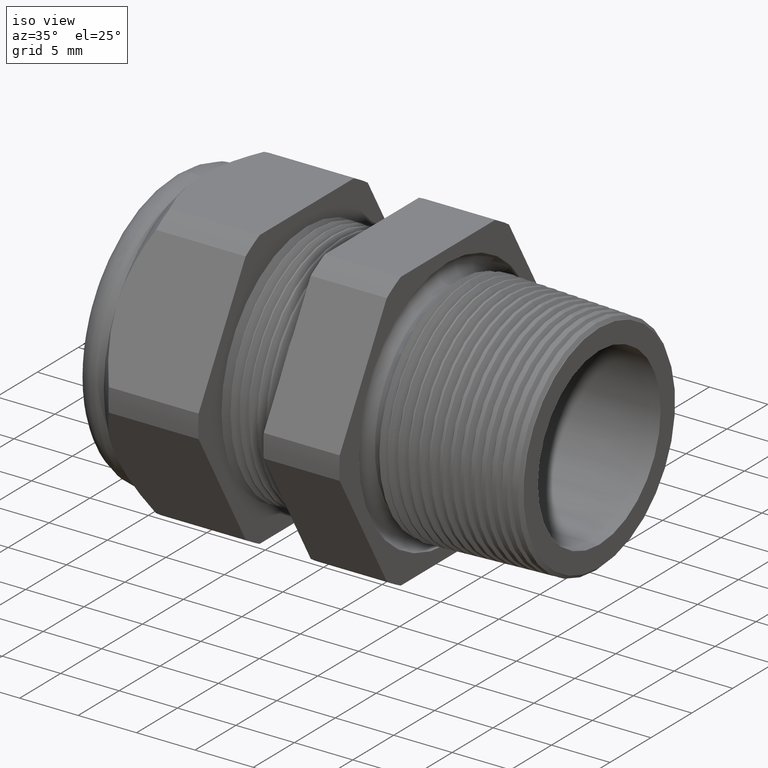
[diagram: clean part render]
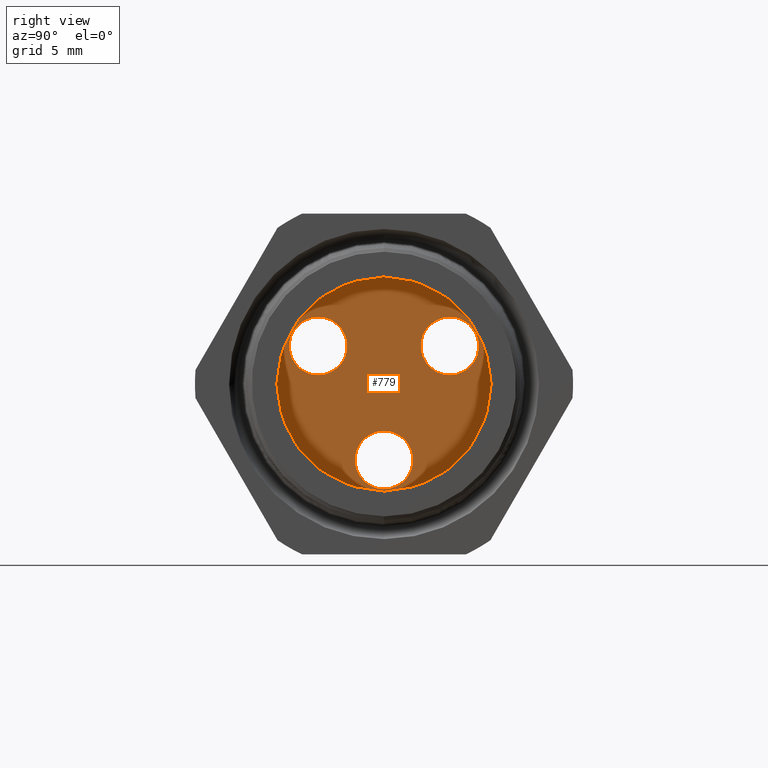
[diagram: tour spotlight — one face highlighted and labeled with its STEP entity id]
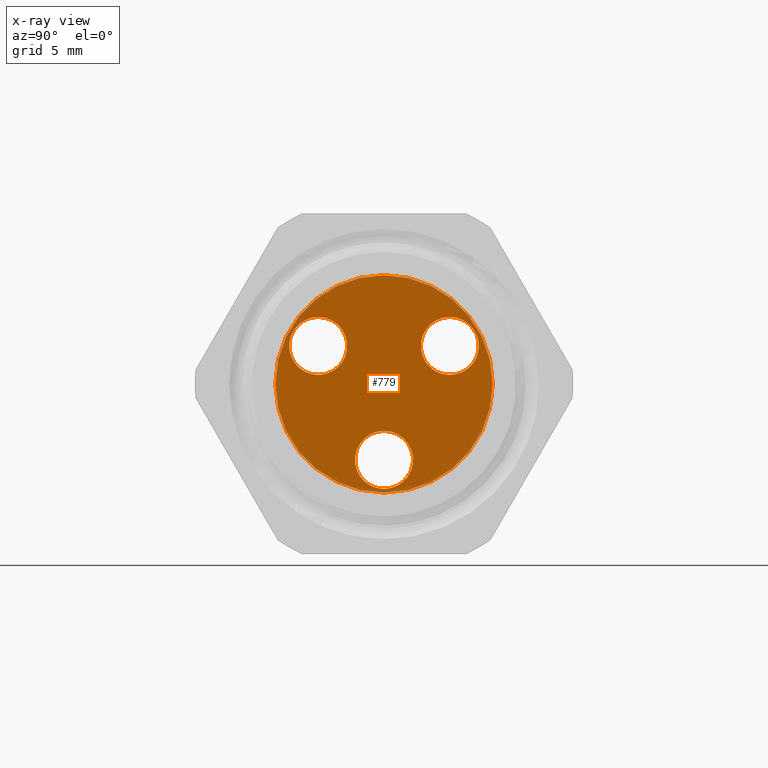
[diagram: x-ray of the same camera — body ghosted, this tour face saturated]
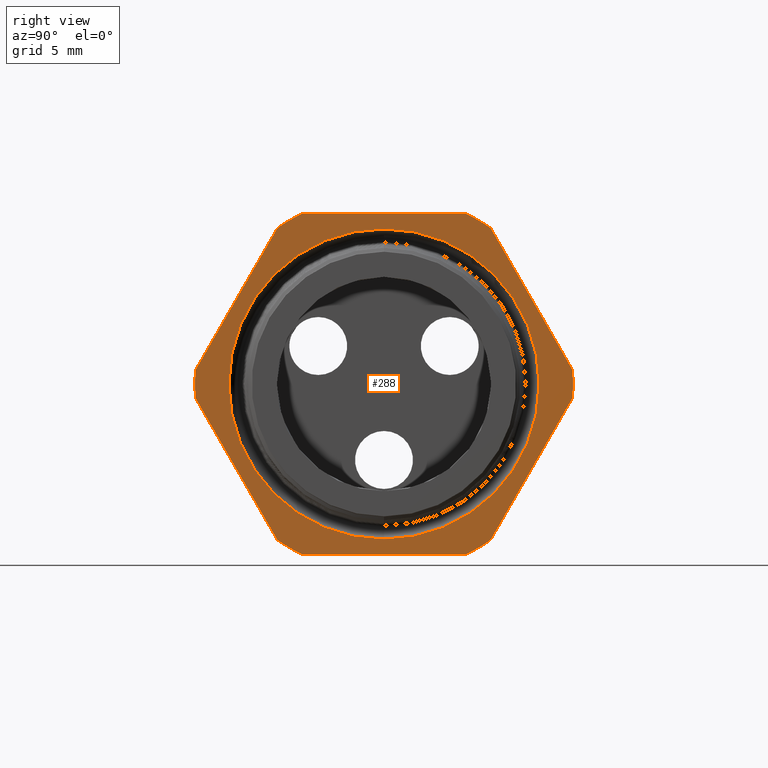
[diagram: tour spotlight — one face highlighted and labeled with its STEP entity id]
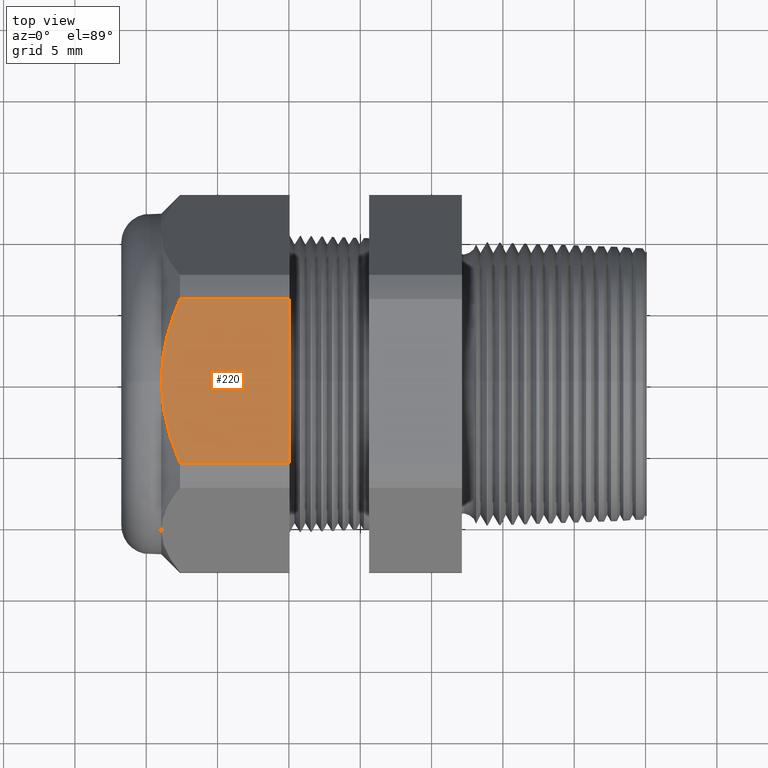
[diagram: tour spotlight — one face highlighted and labeled with its STEP entity id]
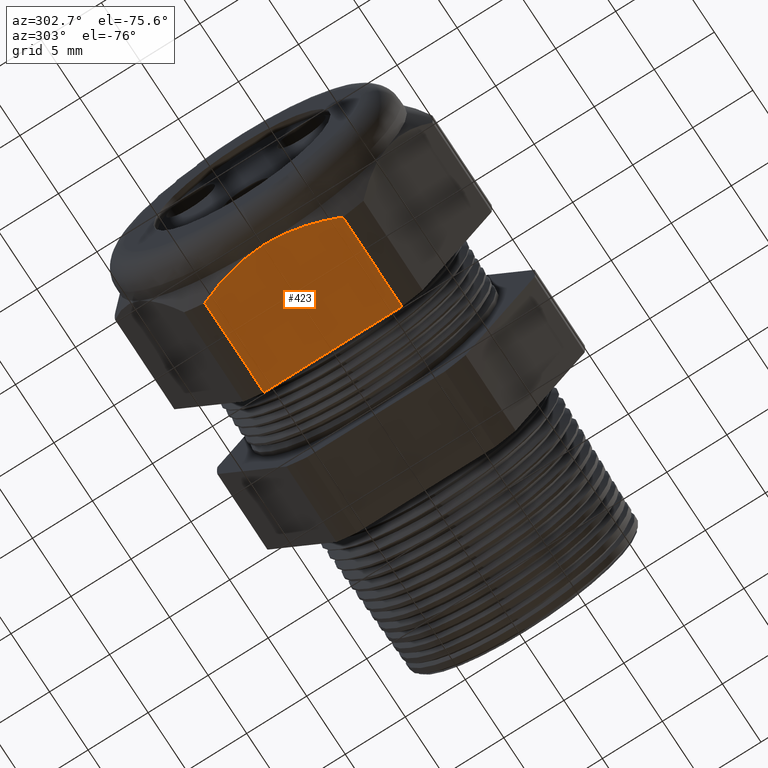
[diagram: tour spotlight — one face highlighted and labeled with its STEP entity id]
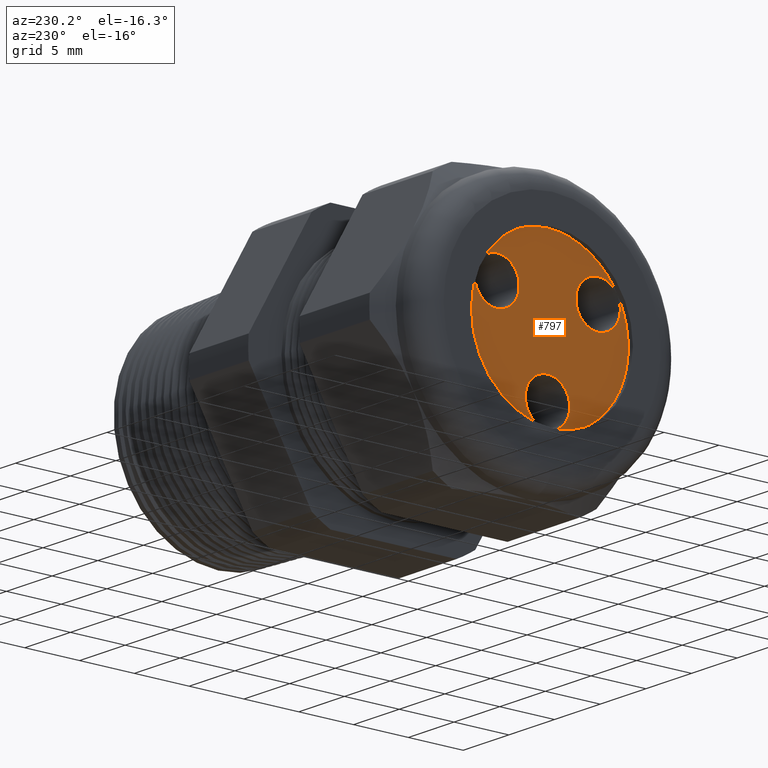
[diagram: tour spotlight — one face highlighted and labeled with its STEP entity id]
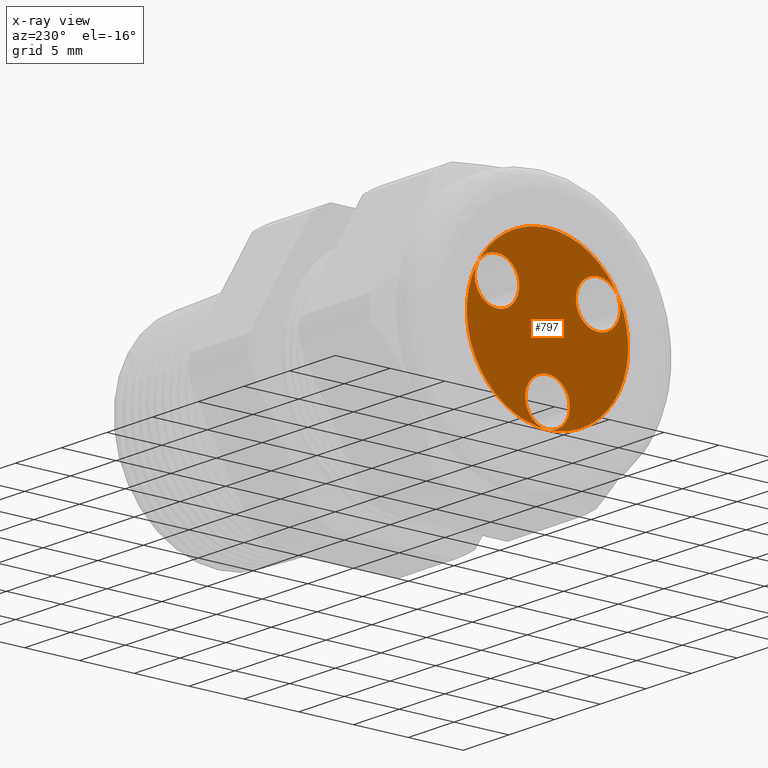
[diagram: x-ray of the same camera — body ghosted, this tour face saturated]
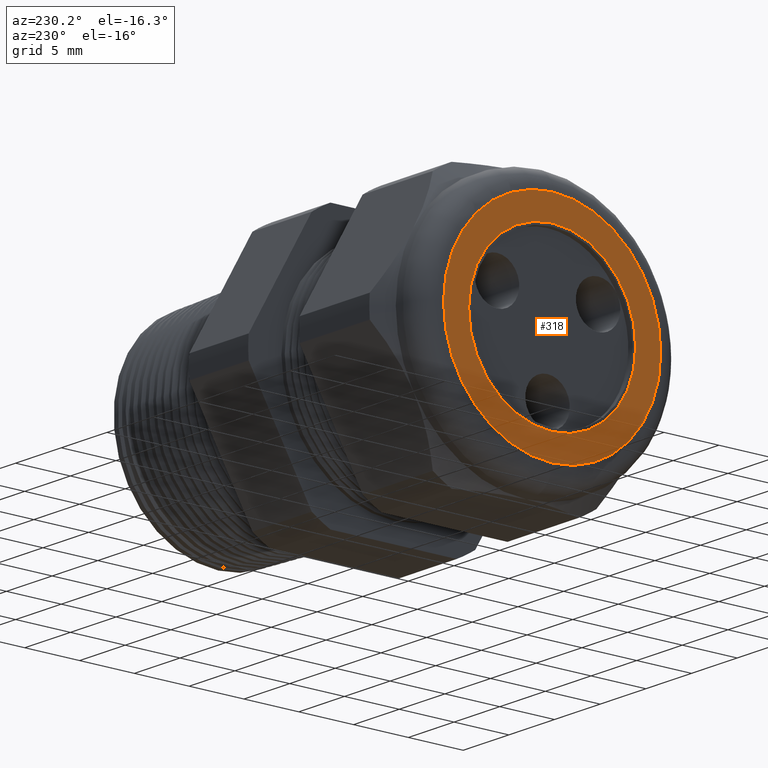
[diagram: tour spotlight — one face highlighted and labeled with its STEP entity id]
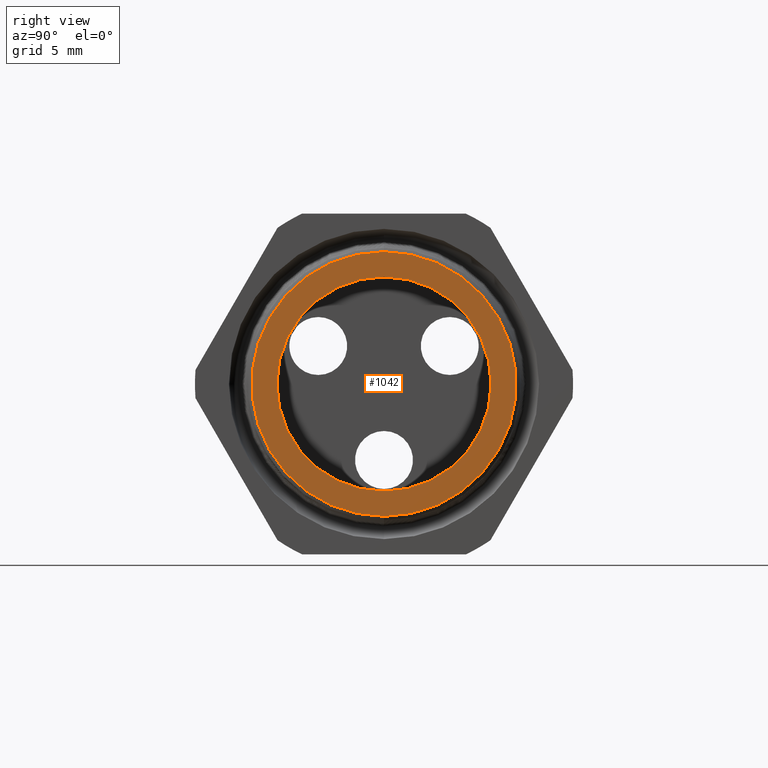
[diagram: tour spotlight — one face highlighted and labeled with its STEP entity id]
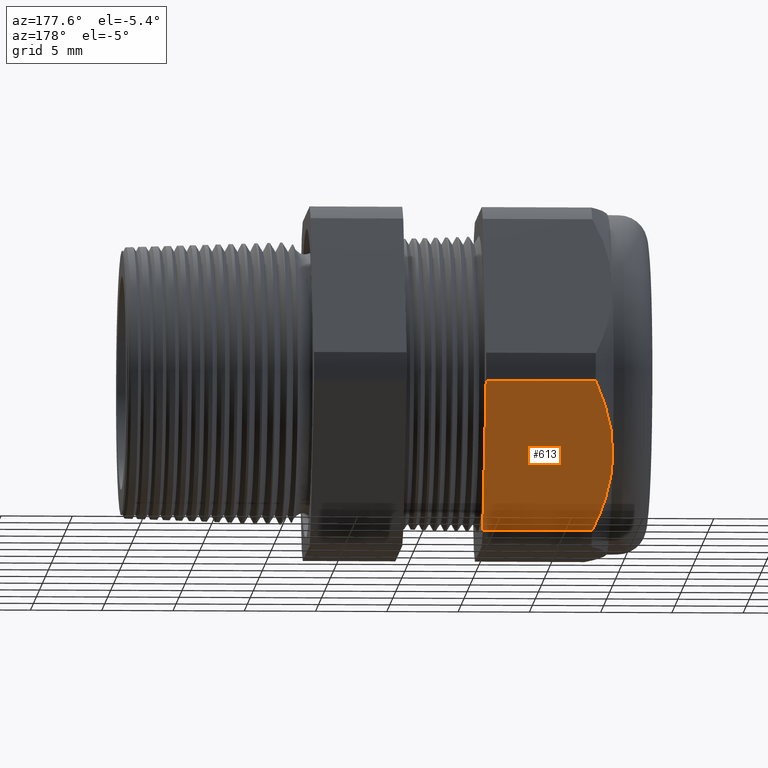
[diagram: tour spotlight — one face highlighted and labeled with its STEP entity id]
A machine part: a face-by-face anatomy tour. The part has 186 B-rep faces; the first image is the clean iso view, then the 8 largest visible faces are spotlighted one at a time (largest first), each with its STEP entity span.

Face 1 — right view, entity #779. An x-ray twin of the same camera follows (body ghosted, this face saturated) — the face is partly hidden behind the body. In plain terms, the highlighted planar face has unit normal (-1, 0, 0).
Definition (entity closure, byte-faithful):
#773 = EDGE_LOOP ( 'NONE', ( #774, #789 ) ) ;
#774 = ORIENTED_EDGE ( 'NONE', *, *, #788, .T. ) ;
#776 = ORIENTED_EDGE ( 'NONE', *, *, #782, .F. ) ;
#779 = ADVANCED_FACE ( 'NONE', ( #3265, #3264, #3263, #3328 ), #3327, .F. ) ;
#780 = ORIENTED_EDGE ( 'NONE', *, *, #787, .T. ) ;
#781 = EDGE_LOOP ( 'NONE', ( #780, #795 ) ) ;
#782 = EDGE_CURVE ( 'NONE', #832, #831, #3322, .T. ) ;
#783 = ORIENTED_EDGE ( 'NONE', *, *, #871, .T. ) ;
#784 = EDGE_LOOP ( 'NONE', ( #785, #776 ) ) ;
#785 = ORIENTED_EDGE ( 'NONE', *, *, #830, .F. ) ;
#787 = EDGE_CURVE ( 'NONE', #853, #822, #3312, .T. ) ;
#788 = EDGE_CURVE ( 'NONE', #886, #858, #3307, .T. ) ;
#789 = ORIENTED_EDGE ( 'NONE', *, *, #885, .T. ) ;
#790 = EDGE_LOOP ( 'NONE', ( #836, #783 ) ) ;
#795 = ORIENTED_EDGE ( 'NONE', *, *, #835, .T. ) ;
#822 = VERTEX_POINT ( 'NONE', #3372 ) ;
#830 = EDGE_CURVE ( 'NONE', #831, #832, #3364, .T. ) ;
#831 = VERTEX_POINT ( 'NONE', #3417 ) ;
#832 = VERTEX_POINT ( 'NONE', #3416 ) ;
#835 = EDGE_CURVE ( 'NONE', #822, #853, #3411, .T. ) ;
#836 = ORIENTED_EDGE ( 'NONE', *, *, #837, .T. ) ;
#837 = EDGE_CURVE ( 'NONE', #873, #872, #3406, .T. ) ;
#853 = VERTEX_POINT ( 'NONE', #3447 ) ;
#858 = VERTEX_POINT ( 'NONE', #3431 ) ;
#871 = EDGE_CURVE ( 'NONE', #872, #873, #3471, .T. ) ;
#872 = VERTEX_POINT ( 'NONE', #3467 ) ;
#873 = VERTEX_POINT ( 'NONE', #3466 ) ;
#885 = EDGE_CURVE ( 'NONE', #858, #886, #3510, .T. ) ;
#886 = VERTEX_POINT ( 'NONE', #3506 ) ;
#3263 = FACE_BOUND ( 'NONE', #790, .T. ) ;
#3264 = FACE_BOUND ( 'NONE', #773, .T. ) ;
#3265 = FACE_BOUND ( 'NONE', #781, .T. ) ;
#3303 = DIRECTION ( 'NONE',  ( 0.0000000000000000000, 0.8660254037844363800, -0.5000000000000038900 ) ) ;
#3304 = DIRECTION ( 'NONE',  ( -1.000000000000000000, 0.0000000000000000000, 0.0000000000000000000 ) ) ;
#3305 = CARTESIAN_POINT ( 'NONE',  ( -0.8999999999999998000, -0.1815882066655207000, 0.1048400000000008600 ) ) ;
#3306 = AXIS2_PLACEMENT_3D ( 'NONE', #3305, #3304, #3303 ) ;
#3307 = CIRCLE ( 'NONE', #3306, 0.08000000000000000200 ) ;
#3308 = DIRECTION ( 'NONE',  ( 0.0000000000000000000, -0.8660254037844432600, -0.4999999999999919500 ) ) ;
#3309 = DIRECTION ( 'NONE',  ( -1.000000000000000000, 0.0000000000000000000, 0.0000000000000000000 ) ) ;
#3310 = CARTESIAN_POINT ( 'NONE',  ( -0.8999999999999998000, 0.1815882066655220800, 0.1048399999999983200 ) ) ;
#3311 = AXIS2_PLACEMENT_3D ( 'NONE', #3310, #3309, #3308 ) ;
#3312 = CIRCLE ( 'NONE', #3311, 0.07999999999999998800 ) ;
#3318 = DIRECTION ( 'NONE',  ( 0.0000000000000000000, 0.0000000000000000000, 1.000000000000000000 ) ) ;
#3319 = DIRECTION ( 'NONE',  ( -1.000000000000000000, 0.0000000000000000000, 0.0000000000000000000 ) ) ;
#3320 = CARTESIAN_POINT ( 'NONE',  ( -0.8999999999999998000, 0.0000000000000000000, 0.0000000000000000000 ) ) ;
#3321 = AXIS2_PLACEMENT_3D ( 'NONE', #3320, #3319, #3318 ) ;
#3322 = CIRCLE ( 'NONE', #3321, 0.2999999999999999900 ) ;
#3323 = DIRECTION ( 'NONE',  ( 0.0000000000000000000, 0.0000000000000000000, 1.000000000000000000 ) ) ;
#3324 = DIRECTION ( 'NONE',  ( -1.000000000000000000, 0.0000000000000000000, 0.0000000000000000000 ) ) ;
#3325 = CARTESIAN_POINT ( 'NONE',  ( -0.8999999999999998000, 0.0000000000000000000, 0.0000000000000000000 ) ) ;
#3326 = AXIS2_PLACEMENT_3D ( 'NONE', #3325, #3324, #3323 ) ;
#3327 = PLANE ( 'NONE',  #3326 ) ;
#3328 = FACE_OUTER_BOUND ( 'NONE', #784, .T. ) ;
#3364 = CIRCLE ( 'NONE', #3421, 0.2999999999999999900 ) ;
#3372 = CARTESIAN_POINT ( 'NONE',  ( -0.8999999999999998000, 0.1815882066655220800, 0.02483999999999834300 ) ) ;
#3402 = DIRECTION ( 'NONE',  ( 0.0000000000000000000, 0.0000000000000000000, 1.000000000000000000 ) ) ;
#3403 = DIRECTION ( 'NONE',  ( -1.000000000000000000, 0.0000000000000000000, 0.0000000000000000000 ) ) ;
#3404 = CARTESIAN_POINT ( 'NONE',  ( -0.8999999999999998000, 0.0000000000000000000, -0.2096800000000000300 ) ) ;
#3405 = AXIS2_PLACEMENT_3D ( 'NONE', #3404, #3403, #3402 ) ;
#3406 = CIRCLE ( 'NONE', #3405, 0.07999999999999998800 ) ;
#3407 = DIRECTION ( 'NONE',  ( 0.0000000000000000000, -0.8660254037844432600, -0.4999999999999919500 ) ) ;
#3408 = DIRECTION ( 'NONE',  ( -1.000000000000000000, 0.0000000000000000000, 0.0000000000000000000 ) ) ;
#3409 = CARTESIAN_POINT ( 'NONE',  ( -0.8999999999999998000, 0.1815882066655220800, 0.1048399999999983200 ) ) ;
#3410 = AXIS2_PLACEMENT_3D ( 'NONE', #3409, #3408, #3407 ) ;
#3411 = CIRCLE ( 'NONE', #3410, 0.07999999999999998800 ) ;
#3416 = CARTESIAN_POINT ( 'NONE',  ( -0.8999999999999998000, 3.673940397442059500E-017, -0.2999999999999999900 ) ) ;
#3417 = CARTESIAN_POINT ( 'NONE',  ( -0.8999999999999998000, 0.0000000000000000000, 0.2999999999999999900 ) ) ;
#3418 = DIRECTION ( 'NONE',  ( 0.0000000000000000000, 0.0000000000000000000, 1.000000000000000000 ) ) ;
#3419 = DIRECTION ( 'NONE',  ( -1.000000000000000000, 0.0000000000000000000, 0.0000000000000000000 ) ) ;
#3420 = CARTESIAN_POINT ( 'NONE',  ( -0.8999999999999998000, 0.0000000000000000000, 0.0000000000000000000 ) ) ;
#3421 = AXIS2_PLACEMENT_3D ( 'NONE', #3420, #3419, #3418 ) ;
#3431 = CARTESIAN_POINT ( 'NONE',  ( -0.8999999999999998000, -0.1815882066655207000, 0.02484000000000088600 ) ) ;
#3447 = CARTESIAN_POINT ( 'NONE',  ( -0.8999999999999998000, 0.1815882066655220800, 0.1848399999999983100 ) ) ;
#3466 = CARTESIAN_POINT ( 'NONE',  ( -0.8999999999999998000, 0.0000000000000000000, -0.1296800000000000500 ) ) ;
#3467 = CARTESIAN_POINT ( 'NONE',  ( -0.8999999999999998000, 9.797174393178824000E-018, -0.2896799999999999900 ) ) ;
#3468 = DIRECTION ( 'NONE',  ( 0.0000000000000000000, 0.0000000000000000000, 1.000000000000000000 ) ) ;
#3469 = DIRECTION ( 'NONE',  ( -1.000000000000000000, 0.0000000000000000000, 0.0000000000000000000 ) ) ;
#3470 = AXIS2_PLACEMENT_3D ( 'NONE', #3477, #3469, #3468 ) ;
#3471 = CIRCLE ( 'NONE', #3470, 0.07999999999999998800 ) ;
#3477 = CARTESIAN_POINT ( 'NONE',  ( -0.8999999999999998000, 0.0000000000000000000, -0.2096800000000000300 ) ) ;
#3506 = CARTESIAN_POINT ( 'NONE',  ( -0.8999999999999998000, -0.1815882066655207000, 0.1848400000000008400 ) ) ;
#3507 = DIRECTION ( 'NONE',  ( 0.0000000000000000000, 0.8660254037844363800, -0.5000000000000038900 ) ) ;
#3508 = DIRECTION ( 'NONE',  ( -1.000000000000000000, 0.0000000000000000000, 0.0000000000000000000 ) ) ;
#3509 = AXIS2_PLACEMENT_3D ( 'NONE', #3515, #3508, #3507 ) ;
#3510 = CIRCLE ( 'NONE', #3509, 0.08000000000000000200 ) ;
#3515 = CARTESIAN_POINT ( 'NONE',  ( -0.8999999999999998000, -0.1815882066655207000, 0.1048400000000008600 ) ) ;

Face 2 — right view, entity #288. In plain terms, the highlighted planar face has unit normal (1, 0, 0).
Definition (entity closure, byte-faithful):
#136 = ORIENTED_EDGE ( 'NONE', *, *, #428, .T. ) ;
#138 = VERTEX_POINT ( 'NONE', #2025 ) ;
#143 = EDGE_CURVE ( 'NONE', #148, #138, #2014, .T. ) ;
#146 = ORIENTED_EDGE ( 'NONE', *, *, #143, .T. ) ;
#148 = VERTEX_POINT ( 'NONE', #2069 ) ;
#150 = EDGE_CURVE ( 'NONE', #159, #148, #2068, .T. ) ;
#157 = ORIENTED_EDGE ( 'NONE', *, *, #150, .T. ) ;
#159 = VERTEX_POINT ( 'NONE', #2058 ) ;
#160 = ORIENTED_EDGE ( 'NONE', *, *, #161, .T. ) ;
#161 = EDGE_CURVE ( 'NONE', #406, #159, #2056, .T. ) ;
#171 = ORIENTED_EDGE ( 'NONE', *, *, #173, .T. ) ;
#172 = ORIENTED_EDGE ( 'NONE', *, *, #174, .T. ) ;
#173 = EDGE_CURVE ( 'NONE', #182, #176, #2100, .T. ) ;
#174 = EDGE_CURVE ( 'NONE', #176, #416, #2095, .T. ) ;
#176 = VERTEX_POINT ( 'NONE', #2090 ) ;
#182 = VERTEX_POINT ( 'NONE', #2084 ) ;
#183 = EDGE_CURVE ( 'NONE', #184, #182, #2083, .T. ) ;
#184 = VERTEX_POINT ( 'NONE', #2078 ) ;
#185 = ORIENTED_EDGE ( 'NONE', *, *, #183, .T. ) ;
#186 = EDGE_CURVE ( 'NONE', #425, #184, #2076, .T. ) ;
#189 = ORIENTED_EDGE ( 'NONE', *, *, #186, .T. ) ;
#288 = ADVANCED_FACE ( 'NONE', ( #2331, #2330 ), #2329, .T. ) ;
#292 = EDGE_LOOP ( 'NONE', ( #422, #421 ) ) ;
#406 = VERTEX_POINT ( 'NONE', #2560 ) ;
#409 = ORIENTED_EDGE ( 'NONE', *, *, #411, .T. ) ;
#410 = VERTEX_POINT ( 'NONE', #2555 ) ;
#411 = EDGE_CURVE ( 'NONE', #410, #406, #2554, .T. ) ;
#413 = EDGE_CURVE ( 'NONE', #417, #410, #2550, .T. ) ;
#414 = ORIENTED_EDGE ( 'NONE', *, *, #413, .T. ) ;
#416 = VERTEX_POINT ( 'NONE', #2545 ) ;
#417 = VERTEX_POINT ( 'NONE', #2544 ) ;
#418 = EDGE_CURVE ( 'NONE', #416, #417, #2543, .T. ) ;
#419 = ORIENTED_EDGE ( 'NONE', *, *, #418, .T. ) ;
#420 = EDGE_LOOP ( 'NONE', ( #419, #414, #409, #160, #157, #146, #136, #430, #189, #185, #171, #172 ) ) ;
#421 = ORIENTED_EDGE ( 'NONE', *, *, #1358, .F. ) ;
#422 = ORIENTED_EDGE ( 'NONE', *, *, #424, .F. ) ;
#424 = EDGE_CURVE ( 'NONE', #1305, #1303, #2597, .T. ) ;
#425 = VERTEX_POINT ( 'NONE', #2592 ) ;
#427 = EDGE_CURVE ( 'NONE', #429, #425, #2586, .T. ) ;
#428 = EDGE_CURVE ( 'NONE', #138, #429, #2580, .T. ) ;
#429 = VERTEX_POINT ( 'NONE', #2575 ) ;
#430 = ORIENTED_EDGE ( 'NONE', *, *, #427, .T. ) ;
#1303 = VERTEX_POINT ( 'NONE', #4157 ) ;
#1305 = VERTEX_POINT ( 'NONE', #4156 ) ;
#1358 = EDGE_CURVE ( 'NONE', #1303, #1305, #4251, .T. ) ;
#1825 = DIRECTION ( 'NONE',  ( 0.0000000000000000000, 0.4999999999999998900, -0.8660254037844386000 ) ) ;
#2010 = DIRECTION ( 'NONE',  ( 0.0000000000000000000, 0.0000000000000000000, -1.000000000000000000 ) ) ;
#2011 = DIRECTION ( 'NONE',  ( 1.000000000000000000, 0.0000000000000000000, 0.0000000000000000000 ) ) ;
#2012 = CARTESIAN_POINT ( 'NONE',  ( -0.3100000000000000000, 0.0000000000000000000, 0.0000000000000000000 ) ) ;
#2013 = AXIS2_PLACEMENT_3D ( 'NONE', #2012, #2011, #2010 ) ;
#2014 = CIRCLE ( 'NONE', #2013, 0.5217000000000000500 ) ;
#2025 = CARTESIAN_POINT ( 'NONE',  ( -0.3100000000000000000, -0.2938165587564947100, 0.4310947921287050500 ) ) ;
#2052 = DIRECTION ( 'NONE',  ( 0.0000000000000000000, 0.0000000000000000000, -1.000000000000000000 ) ) ;
#2053 = DIRECTION ( 'NONE',  ( 1.000000000000000000, 0.0000000000000000000, 0.0000000000000000000 ) ) ;
#2054 = CARTESIAN_POINT ( 'NONE',  ( -0.3100000000000000000, 0.0000000000000000000, 0.0000000000000000000 ) ) ;
#2055 = AXIS2_PLACEMENT_3D ( 'NONE', #2054, #2053, #2052 ) ;
#2056 = CIRCLE ( 'NONE', #2055, 0.5217000000000000500 ) ;
#2058 = CARTESIAN_POINT ( 'NONE',  ( -0.3100000000000000000, 0.2264307620443832800, 0.4699999999999999200 ) ) ;
#2065 = DIRECTION ( 'NONE',  ( 0.0000000000000000000, -1.000000000000000000, 0.0000000000000000000 ) ) ;
#2066 = VECTOR ( 'NONE', #2065, 39.37007874015748100 ) ;
#2067 = CARTESIAN_POINT ( 'NONE',  ( -0.3100000000000000000, 0.9399999999999999500, 0.4699999999999999200 ) ) ;
#2068 = LINE ( 'NONE', #2067, #2066 ) ;
#2069 = CARTESIAN_POINT ( 'NONE',  ( -0.3100000000000000000, -0.2264307620443835600, 0.4699999999999997500 ) ) ;
#2074 = VECTOR ( 'NONE', #1825, 39.37007874015748900 ) ;
#2075 = CARTESIAN_POINT ( 'NONE',  ( -0.3100000000000000000, -0.1720319397786862800, -0.6420319397786862200 ) ) ;
#2076 = LINE ( 'NONE', #2075, #2074 ) ;
#2078 = CARTESIAN_POINT ( 'NONE',  ( -0.3100000000000000000, -0.2938165587564944800, -0.4310947921287051100 ) ) ;
#2079 = DIRECTION ( 'NONE',  ( 0.0000000000000000000, 0.0000000000000000000, -1.000000000000000000 ) ) ;
#2080 = DIRECTION ( 'NONE',  ( 1.000000000000000000, 0.0000000000000000000, 0.0000000000000000000 ) ) ;
#2081 = CARTESIAN_POINT ( 'NONE',  ( -0.3100000000000000000, 0.0000000000000000000, 0.0000000000000000000 ) ) ;
#2082 = AXIS2_PLACEMENT_3D ( 'NONE', #2081, #2080, #2079 ) ;
#2083 = CIRCLE ( 'NONE', #2082, 0.5217000000000000500 ) ;
#2084 = CARTESIAN_POINT ( 'NONE',  ( -0.3100000000000000000, -0.2264307620443832300, -0.4699999999999999700 ) ) ;
#2090 = CARTESIAN_POINT ( 'NONE',  ( -0.3100000000000000000, 0.2264307620443832800, -0.4699999999999999700 ) ) ;
#2091 = DIRECTION ( 'NONE',  ( 0.0000000000000000000, 0.0000000000000000000, -1.000000000000000000 ) ) ;
#2092 = DIRECTION ( 'NONE',  ( 1.000000000000000000, 0.0000000000000000000, 0.0000000000000000000 ) ) ;
#2093 = CARTESIAN_POINT ( 'NONE',  ( -0.3100000000000000000, 0.0000000000000000000, 0.0000000000000000000 ) ) ;
#2094 = AXIS2_PLACEMENT_3D ( 'NONE', #2093, #2092, #2091 ) ;
#2095 = CIRCLE ( 'NONE', #2094, 0.5217000000000000500 ) ;
#2097 = DIRECTION ( 'NONE',  ( 0.0000000000000000000, 1.000000000000000000, 0.0000000000000000000 ) ) ;
#2098 = VECTOR ( 'NONE', #2097, 39.37007874015748100 ) ;
#2099 = CARTESIAN_POINT ( 'NONE',  ( -0.3100000000000000000, 0.9399999999999999500, -0.4699999999999999700 ) ) ;
#2100 = LINE ( 'NONE', #2099, #2098 ) ;
#2324 = DIRECTION ( 'NONE',  ( 0.0000000000000000000, 0.0000000000000000000, -1.000000000000000000 ) ) ;
#2325 = DIRECTION ( 'NONE',  ( 1.000000000000000000, 0.0000000000000000000, 0.0000000000000000000 ) ) ;
#2326 = CARTESIAN_POINT ( 'NONE',  ( -0.3100000000000000000, 0.9399999999999999500, 0.0000000000000000000 ) ) ;
#2328 = AXIS2_PLACEMENT_3D ( 'NONE', #2326, #2325, #2324 ) ;
#2329 = PLANE ( 'NONE',  #2328 ) ;
#2330 = FACE_OUTER_BOUND ( 'NONE', #420, .T. ) ;
#2331 = FACE_BOUND ( 'NONE', #292, .T. ) ;
#2543 = LINE ( 'NONE', #2606, #2605 ) ;
#2544 = CARTESIAN_POINT ( 'NONE',  ( -0.3100000000000000000, 0.5202473208008777700, -0.03890520787129480400 ) ) ;
#2545 = CARTESIAN_POINT ( 'NONE',  ( -0.3100000000000000000, 0.2938165587564947100, -0.4310947921287049400 ) ) ;
#2546 = DIRECTION ( 'NONE',  ( 0.0000000000000000000, 0.0000000000000000000, -1.000000000000000000 ) ) ;
#2547 = DIRECTION ( 'NONE',  ( 1.000000000000000000, 0.0000000000000000000, 0.0000000000000000000 ) ) ;
#2548 = CARTESIAN_POINT ( 'NONE',  ( -0.3100000000000000000, 0.0000000000000000000, 0.0000000000000000000 ) ) ;
#2549 = AXIS2_PLACEMENT_3D ( 'NONE', #2548, #2547, #2546 ) ;
#2550 = CIRCLE ( 'NONE', #2549, 0.5217000000000000500 ) ;
#2551 = DIRECTION ( 'NONE',  ( 0.0000000000000000000, -0.4999999999999997200, 0.8660254037844388200 ) ) ;
#2552 = VECTOR ( 'NONE', #2551, 39.37007874015748900 ) ;
#2553 = CARTESIAN_POINT ( 'NONE',  ( -0.3100000000000000000, 0.6420319397786858900, -0.1720319397786861900 ) ) ;
#2554 = LINE ( 'NONE', #2553, #2552 ) ;
#2555 = CARTESIAN_POINT ( 'NONE',  ( -0.3100000000000000000, 0.5202473208008776600, 0.03890520787129488800 ) ) ;
#2560 = CARTESIAN_POINT ( 'NONE',  ( -0.3100000000000000000, 0.2938165587564945900, 0.4310947921287050500 ) ) ;
#2575 = CARTESIAN_POINT ( 'NONE',  ( -0.3100000000000000000, -0.5202473208008777700, 0.03890520787129464500 ) ) ;
#2577 = DIRECTION ( 'NONE',  ( 0.0000000000000000000, -0.4999999999999998300, -0.8660254037844388200 ) ) ;
#2578 = VECTOR ( 'NONE', #2577, 39.37007874015748100 ) ;
#2579 = CARTESIAN_POINT ( 'NONE',  ( -0.3100000000000000000, -0.1720319397786864200, 0.6420319397786858900 ) ) ;
#2580 = LINE ( 'NONE', #2579, #2578 ) ;
#2582 = DIRECTION ( 'NONE',  ( 0.0000000000000000000, 0.0000000000000000000, -1.000000000000000000 ) ) ;
#2583 = DIRECTION ( 'NONE',  ( 1.000000000000000000, 0.0000000000000000000, 0.0000000000000000000 ) ) ;
#2584 = CARTESIAN_POINT ( 'NONE',  ( -0.3100000000000000000, 0.0000000000000000000, 0.0000000000000000000 ) ) ;
#2585 = AXIS2_PLACEMENT_3D ( 'NONE', #2584, #2583, #2582 ) ;
#2586 = CIRCLE ( 'NONE', #2585, 0.5217000000000000500 ) ;
#2592 = CARTESIAN_POINT ( 'NONE',  ( -0.3100000000000000000, -0.5202473208008777700, -0.03890520787129494300 ) ) ;
#2593 = DIRECTION ( 'NONE',  ( 0.0000000000000000000, 0.0000000000000000000, -1.000000000000000000 ) ) ;
#2594 = DIRECTION ( 'NONE',  ( 1.000000000000000000, 0.0000000000000000000, 0.0000000000000000000 ) ) ;
#2595 = CARTESIAN_POINT ( 'NONE',  ( -0.3100000000000000000, 0.0000000000000000000, 0.0000000000000000000 ) ) ;
#2596 = AXIS2_PLACEMENT_3D ( 'NONE', #2595, #2594, #2593 ) ;
#2597 = CIRCLE ( 'NONE', #2596, 0.4280385274749105600 ) ;
#2604 = DIRECTION ( 'NONE',  ( 0.0000000000000000000, 0.4999999999999998300, 0.8660254037844388200 ) ) ;
#2605 = VECTOR ( 'NONE', #2604, 39.37007874015748100 ) ;
#2606 = CARTESIAN_POINT ( 'NONE',  ( -0.3100000000000000000, 0.6420319397786861100, 0.1720319397786861100 ) ) ;
#4156 = CARTESIAN_POINT ( 'NONE',  ( -0.3100000000000000000, 0.0000000000000000000, -0.4280385274749105600 ) ) ;
#4157 = CARTESIAN_POINT ( 'NONE',  ( -0.3100000000000000000, 5.241960125838956100E-017, 0.4280385274749105600 ) ) ;
#4247 = DIRECTION ( 'NONE',  ( 0.0000000000000000000, 0.0000000000000000000, -1.000000000000000000 ) ) ;
#4248 = DIRECTION ( 'NONE',  ( 1.000000000000000000, 0.0000000000000000000, 0.0000000000000000000 ) ) ;
#4249 = CARTESIAN_POINT ( 'NONE',  ( -0.3100000000000000000, 0.0000000000000000000, 0.0000000000000000000 ) ) ;
#4250 = AXIS2_PLACEMENT_3D ( 'NONE', #4249, #4248, #4247 ) ;
#4251 = CIRCLE ( 'NONE', #4250, 0.4280385274749105600 ) ;

Face 3 — top view, entity #220. In plain terms, the highlighted planar face has unit normal (0, 0, 1).
Definition (entity closure, byte-faithful):
#3 = EDGE_CURVE ( 'NONE', #10, #1309, #1784, .T. ) ;
#10 = VERTEX_POINT ( 'NONE', #1767 ) ;
#204 = VERTEX_POINT ( 'NONE', #2165 ) ;
#215 = ORIENTED_EDGE ( 'NONE', *, *, #3, .T. ) ;
#216 = EDGE_LOOP ( 'NONE', ( #215, #269, #265, #263, #264 ) ) ;
#220 = ADVANCED_FACE ( 'NONE', ( #2138 ), #2137, .T. ) ;
#223 = VERTEX_POINT ( 'NONE', #2187 ) ;
#226 = VERTEX_POINT ( 'NONE', #2184 ) ;
#229 = EDGE_CURVE ( 'NONE', #226, #223, #2183, .T. ) ;
#261 = EDGE_CURVE ( 'NONE', #10, #226, #2288, .T. ) ;
#262 = EDGE_CURVE ( 'NONE', #204, #223, #2279, .T. ) ;
#263 = ORIENTED_EDGE ( 'NONE', *, *, #229, .F. ) ;
#264 = ORIENTED_EDGE ( 'NONE', *, *, #261, .F. ) ;
#265 = ORIENTED_EDGE ( 'NONE', *, *, #262, .T. ) ;
#269 = ORIENTED_EDGE ( 'NONE', *, *, #273, .T. ) ;
#273 = EDGE_CURVE ( 'NONE', #1309, #204, #2302, .T. ) ;
#1309 = VERTEX_POINT ( 'NONE', #4155 ) ;
#1767 = CARTESIAN_POINT ( 'NONE',  ( -0.7854330708661414500, 0.2264307620443832800, 0.4699999999999999200 ) ) ;
#1777 = DIRECTION ( 'NONE',  ( -1.000000000000000000, 0.0000000000000000000, 0.0000000000000000000 ) ) ;
#1778 = VECTOR ( 'NONE', #1777, 39.37007874015748100 ) ;
#1779 = CARTESIAN_POINT ( 'NONE',  ( 0.1999999999999999300, 0.2264307620443832800, 0.4699999999999999200 ) ) ;
#1784 = LINE ( 'NONE', #1779, #1778 ) ;
#2136 = CARTESIAN_POINT ( 'NONE',  ( 0.1999999999999999300, -0.2264307620443832800, 0.4699999999999999200 ) ) ;
#2137 = PLANE ( 'NONE',  #2200 ) ;
#2138 = FACE_OUTER_BOUND ( 'NONE', #216, .T. ) ;
#2165 = CARTESIAN_POINT ( 'NONE',  ( -1.139763779527558800, 0.0000000000000000000, 0.4699999999999999200 ) ) ;
#2180 = DIRECTION ( 'NONE',  ( -1.000000000000000000, 0.0000000000000000000, 0.0000000000000000000 ) ) ;
#2181 = VECTOR ( 'NONE', #2180, 39.37007874015748100 ) ;
#2182 = CARTESIAN_POINT ( 'NONE',  ( 0.1999999999999999300, -0.2264307620443835600, 0.4699999999999997500 ) ) ;
#2183 = LINE ( 'NONE', #2182, #2181 ) ;
#2184 = CARTESIAN_POINT ( 'NONE',  ( -0.7854330708661414500, -0.2264307620443835600, 0.4699999999999997500 ) ) ;
#2187 = CARTESIAN_POINT ( 'NONE',  ( -1.088063779527558700, -0.2264307620443835000, 0.4699999999999999200 ) ) ;
#2198 = DIRECTION ( 'NONE',  ( 1.000000000000000000, 0.0000000000000000000, 0.0000000000000000000 ) ) ;
#2199 = DIRECTION ( 'NONE',  ( 0.0000000000000000000, 0.0000000000000000000, 1.000000000000000000 ) ) ;
#2200 = AXIS2_PLACEMENT_3D ( 'NONE', #2136, #2199, #2198 ) ;
#2269 = CARTESIAN_POINT ( 'NONE',  ( -1.088063779527558700, -0.2264307620443835000, 0.4699999999999999200 ) ) ;
#2270 = CARTESIAN_POINT ( 'NONE',  ( -1.095800659726855300, -0.2086048696456210300, 0.4699999999999999700 ) ) ;
#2271 = CARTESIAN_POINT ( 'NONE',  ( -1.102949366997028100, -0.1904348960138966800, 0.4700000000000000300 ) ) ;
#2272 = CARTESIAN_POINT ( 'NONE',  ( -1.115712352585576100, -0.1532690879941743800, 0.4699999999999999200 ) ) ;
#2273 = CARTESIAN_POINT ( 'NONE',  ( -1.121231388637372800, -0.1345390626635396500, 0.4699999999999998600 ) ) ;
#2274 = CARTESIAN_POINT ( 'NONE',  ( -1.134778598172672600, -0.07783554612607099200, 0.4699999999999998600 ) ) ;
#2275 = CARTESIAN_POINT ( 'NONE',  ( -1.139763779527558800, -0.03934296915062190200, 0.4699999999999999700 ) ) ;
#2276 = CARTESIAN_POINT ( 'NONE',  ( -1.139763779527558800, 0.0000000000000000000, 0.4699999999999999200 ) ) ;
#2279 = B_SPLINE_CURVE_WITH_KNOTS ( 'NONE', 3,
 ( #2276, #2275, #2274, #2273, #2272, #2271, #2270, #2269 ),
 .UNSPECIFIED., .F., .F.,
 ( 4, 2, 2, 4 ),
 ( 0.01501897965151429700, 0.01796263803772296000, 0.01943446723082728800, 0.02090629642393161700 ),
 .UNSPECIFIED. ) ;
#2280 = DIRECTION ( 'NONE',  ( 0.0000000000000000000, -1.000000000000000000, 0.0000000000000000000 ) ) ;
#2281 = VECTOR ( 'NONE', #2280, 39.37007874015748100 ) ;
#2282 = CARTESIAN_POINT ( 'NONE',  ( -0.7854330708661414500, 0.4099999999999999800, 0.4699999999999999200 ) ) ;
#2288 = LINE ( 'NONE', #2282, #2281 ) ;
#2289 = CARTESIAN_POINT ( 'NONE',  ( -1.139763779527558800, 0.0000000000000000000, 0.4699999999999999200 ) ) ;
#2290 = CARTESIAN_POINT ( 'NONE',  ( -1.139763779527559000, 0.01964242875915809400, 0.4699999999999999200 ) ) ;
#2291 = CARTESIAN_POINT ( 'NONE',  ( -1.138517019735540500, 0.03924163778662351200, 0.4699999999999999700 ) ) ;
#2292 = CARTESIAN_POINT ( 'NONE',  ( -1.133749478914868500, 0.07782038235249978700, 0.4699999999999999200 ) ) ;
#2293 = CARTESIAN_POINT ( 'NONE',  ( -1.130231001418866300, 0.09688970369981489400, 0.4699999999999999700 ) ) ;
#2294 = CARTESIAN_POINT ( 'NONE',  ( -1.121202062721104600, 0.1346420459264780200, 0.4699999999999999200 ) ) ;
#2295 = CARTESIAN_POINT ( 'NONE',  ( -1.115692781244512300, 0.1533252955870070000, 0.4699999999999999200 ) ) ;
#2296 = CARTESIAN_POINT ( 'NONE',  ( -1.102974602953725700, 0.1903621927138393300, 0.4699999999999999700 ) ) ;
#2297 = CARTESIAN_POINT ( 'NONE',  ( -1.095800509309332100, 0.2086052162099338300, 0.4699999999999997500 ) ) ;
#2298 = CARTESIAN_POINT ( 'NONE',  ( -1.088063779527558700, 0.2264307620443833400, 0.4700000000000000300 ) ) ;
#2302 = B_SPLINE_CURVE_WITH_KNOTS ( 'NONE', 3,
 ( #2298, #2297, #2296, #2295, #2294, #2293, #2292, #2291, #2290, #2289 ),
 .UNSPECIFIED., .F., .F.,
 ( 4, 2, 2, 2, 4 ),
 ( 0.009140358755258088200, 0.01061001397932214000, 0.01207966920338619300, 0.01354932442745024500, 0.01501897965151429700 ),
 .UNSPECIFIED. ) ;
#4155 = CARTESIAN_POINT ( 'NONE',  ( -1.088063779527558700, 0.2264307620443833400, 0.4700000000000000300 ) ) ;

Face 4 — auxiliary view, entity #423. In plain terms, the highlighted planar face has unit normal (0, 0, -1).
Definition (entity closure, byte-faithful):
#169 = VERTEX_POINT ( 'NONE', #2101 ) ;
#402 = VERTEX_POINT ( 'NONE', #2566 ) ;
#403 = VERTEX_POINT ( 'NONE', #2565 ) ;
#408 = EDGE_CURVE ( 'NONE', #403, #402, #2559, .T. ) ;
#412 = ORIENTED_EDGE ( 'NONE', *, *, #408, .T. ) ;
#415 = EDGE_LOOP ( 'NONE', ( #412, #637, #450, #448, #443 ) ) ;
#423 = ADVANCED_FACE ( 'NONE', ( #2603 ), #2602, .T. ) ;
#434 = VERTEX_POINT ( 'NONE', #2624 ) ;
#443 = ORIENTED_EDGE ( 'NONE', *, *, #444, .F. ) ;
#444 = EDGE_CURVE ( 'NONE', #403, #623, #2612, .T. ) ;
#446 = EDGE_CURVE ( 'NONE', #169, #434, #2655, .T. ) ;
#448 = ORIENTED_EDGE ( 'NONE', *, *, #616, .F. ) ;
#450 = ORIENTED_EDGE ( 'NONE', *, *, #446, .T. ) ;
#616 = EDGE_CURVE ( 'NONE', #623, #434, #2960, .T. ) ;
#623 = VERTEX_POINT ( 'NONE', #3003 ) ;
#634 = EDGE_CURVE ( 'NONE', #402, #169, #3034, .T. ) ;
#637 = ORIENTED_EDGE ( 'NONE', *, *, #634, .T. ) ;
#2101 = CARTESIAN_POINT ( 'NONE',  ( -1.139763779527558800, 0.0000000000000000000, -0.4699999999999999700 ) ) ;
#2556 = DIRECTION ( 'NONE',  ( -1.000000000000000000, 0.0000000000000000000, 0.0000000000000000000 ) ) ;
#2557 = VECTOR ( 'NONE', #2556, 39.37007874015748100 ) ;
#2558 = CARTESIAN_POINT ( 'NONE',  ( 0.1999999999999999300, -0.2264307620443832300, -0.4699999999999999700 ) ) ;
#2559 = LINE ( 'NONE', #2558, #2557 ) ;
#2565 = CARTESIAN_POINT ( 'NONE',  ( -0.7854330708661414500, -0.2264307620443832300, -0.4699999999999999700 ) ) ;
#2566 = CARTESIAN_POINT ( 'NONE',  ( -1.088063779527558700, -0.2264307620443832500, -0.4699999999999999700 ) ) ;
#2598 = DIRECTION ( 'NONE',  ( -1.000000000000000000, 0.0000000000000000000, 0.0000000000000000000 ) ) ;
#2599 = DIRECTION ( 'NONE',  ( 0.0000000000000000000, 0.0000000000000000000, -1.000000000000000000 ) ) ;
#2600 = CARTESIAN_POINT ( 'NONE',  ( 0.1999999999999999300, 0.2264307620443832300, -0.4699999999999999700 ) ) ;
#2601 = AXIS2_PLACEMENT_3D ( 'NONE', #2600, #2599, #2598 ) ;
#2602 = PLANE ( 'NONE',  #2601 ) ;
#2603 = FACE_OUTER_BOUND ( 'NONE', #415, .T. ) ;
#2609 = DIRECTION ( 'NONE',  ( 0.0000000000000000000, 1.000000000000000000, 0.0000000000000000000 ) ) ;
#2610 = VECTOR ( 'NONE', #2609, 39.37007874015748100 ) ;
#2611 = CARTESIAN_POINT ( 'NONE',  ( -0.7854330708661414500, 0.4099999999999999800, -0.4699999999999999700 ) ) ;
#2612 = LINE ( 'NONE', #2611, #2610 ) ;
#2624 = CARTESIAN_POINT ( 'NONE',  ( -1.088063779527558700, 0.2264307620443832800, -0.4699999999999999700 ) ) ;
#2643 = CARTESIAN_POINT ( 'NONE',  ( -1.088063779527558700, 0.2264307620443832800, -0.4699999999999999700 ) ) ;
#2644 = CARTESIAN_POINT ( 'NONE',  ( -1.095800509309332600, 0.2086052162099337200, -0.4699999999999999700 ) ) ;
#2645 = CARTESIAN_POINT ( 'NONE',  ( -1.102974602953725700, 0.1903621927138391100, -0.4699999999999999700 ) ) ;
#2646 = CARTESIAN_POINT ( 'NONE',  ( -1.115692781244512300, 0.1533252955870068600, -0.4700000000000000300 ) ) ;
#2647 = CARTESIAN_POINT ( 'NONE',  ( -1.121202062721105000, 0.1346420459264779400, -0.4700000000000000800 ) ) ;
#2648 = CARTESIAN_POINT ( 'NONE',  ( -1.130231001418866600, 0.09688970369981482500, -0.4699999999999999200 ) ) ;
#2649 = CARTESIAN_POINT ( 'NONE',  ( -1.133749478914868100, 0.07782038235249984200, -0.4700000000000000300 ) ) ;
#2650 = CARTESIAN_POINT ( 'NONE',  ( -1.138517019735540800, 0.03924163778662356100, -0.4699999999999999700 ) ) ;
#2651 = CARTESIAN_POINT ( 'NONE',  ( -1.139763779527558800, 0.01964242875915816300, -0.4700000000000000300 ) ) ;
#2652 = CARTESIAN_POINT ( 'NONE',  ( -1.139763779527558800, 0.0000000000000000000, -0.4699999999999999700 ) ) ;
#2655 = B_SPLINE_CURVE_WITH_KNOTS ( 'NONE', 3,
 ( #2652, #2651, #2650, #2649, #2648, #2647, #2646, #2645, #2644, #2643 ),
 .UNSPECIFIED., .F., .F.,
 ( 4, 2, 2, 2, 4 ),
 ( 0.01398828679202870200, 0.01545854684696778600, 0.01692880690190687000, 0.01839906695684595200, 0.01986932701178503400 ),
 .UNSPECIFIED. ) ;
#2957 = DIRECTION ( 'NONE',  ( -1.000000000000000000, 0.0000000000000000000, 0.0000000000000000000 ) ) ;
#2958 = VECTOR ( 'NONE', #2957, 39.37007874015748100 ) ;
#2959 = CARTESIAN_POINT ( 'NONE',  ( 0.1999999999999999300, 0.2264307620443832800, -0.4699999999999999700 ) ) ;
#2960 = LINE ( 'NONE', #2959, #2958 ) ;
#3003 = CARTESIAN_POINT ( 'NONE',  ( -0.7854330708661414500, 0.2264307620443832800, -0.4699999999999999700 ) ) ;
#3025 = CARTESIAN_POINT ( 'NONE',  ( -1.139763779527558800, 0.0000000000000000000, -0.4699999999999999700 ) ) ;
#3026 = CARTESIAN_POINT ( 'NONE',  ( -1.139763779527558600, -0.03934296915062177700, -0.4699999999999999700 ) ) ;
#3027 = CARTESIAN_POINT ( 'NONE',  ( -1.134778598172672600, -0.07783554612607089500, -0.4699999999999999700 ) ) ;
#3028 = CARTESIAN_POINT ( 'NONE',  ( -1.121231388637372800, -0.1345390626635395200, -0.4699999999999999200 ) ) ;
#3029 = CARTESIAN_POINT ( 'NONE',  ( -1.115712352585575700, -0.1532690879941742400, -0.4699999999999999700 ) ) ;
#3030 = CARTESIAN_POINT ( 'NONE',  ( -1.102949366997027800, -0.1904348960138964300, -0.4700000000000000300 ) ) ;
#3031 = CARTESIAN_POINT ( 'NONE',  ( -1.095800659726854800, -0.2086048696456205800, -0.4699999999999999200 ) ) ;
#3032 = CARTESIAN_POINT ( 'NONE',  ( -1.088063779527558700, -0.2264307620443832500, -0.4699999999999999700 ) ) ;
#3034 = B_SPLINE_CURVE_WITH_KNOTS ( 'NONE', 3,
 ( #3032, #3031, #3030, #3029, #3028, #3027, #3026, #3025 ),
 .UNSPECIFIED., .F., .F.,
 ( 4, 2, 2, 4 ),
 ( 0.008098547117357345400, 0.009570982036025185000, 0.01104341695469302300, 0.01398828679202870200 ),
 .UNSPECIFIED. ) ;

Face 5 — auxiliary view, entity #797. An x-ray twin of the same camera follows (body ghosted, this face saturated) — the face is partly hidden behind the body. In plain terms, the highlighted planar face has unit normal (-1, 0, 0).
Definition (entity closure, byte-faithful):
#791 = ORIENTED_EDGE ( 'NONE', *, *, #792, .F. ) ;
#792 = EDGE_CURVE ( 'NONE', #889, #817, #3302, .T. ) ;
#793 = ORIENTED_EDGE ( 'NONE', *, *, #888, .F. ) ;
#794 = EDGE_LOOP ( 'NONE', ( #911, #894 ) ) ;
#797 = ADVANCED_FACE ( 'NONE', ( #3363, #3362, #3361, #3360 ), #3359, .T. ) ;
#798 = EDGE_LOOP ( 'NONE', ( #791, #793 ) ) ;
#808 = EDGE_CURVE ( 'NONE', #809, #810, #3337, .T. ) ;
#809 = VERTEX_POINT ( 'NONE', #3332 ) ;
#810 = VERTEX_POINT ( 'NONE', #3331 ) ;
#815 = EDGE_CURVE ( 'NONE', #874, #816, #3388, .T. ) ;
#816 = VERTEX_POINT ( 'NONE', #3383 ) ;
#817 = VERTEX_POINT ( 'NONE', #3382 ) ;
#841 = EDGE_CURVE ( 'NONE', #810, #809, #3401, .T. ) ;
#861 = VERTEX_POINT ( 'NONE', #3426 ) ;
#863 = EDGE_CURVE ( 'NONE', #861, #864, #3488, .T. ) ;
#864 = VERTEX_POINT ( 'NONE', #3483 ) ;
#874 = VERTEX_POINT ( 'NONE', #3465 ) ;
#888 = EDGE_CURVE ( 'NONE', #817, #889, #3505, .T. ) ;
#889 = VERTEX_POINT ( 'NONE', #3500 ) ;
#893 = ORIENTED_EDGE ( 'NONE', *, *, #920, .F. ) ;
#894 = ORIENTED_EDGE ( 'NONE', *, *, #863, .F. ) ;
#903 = ORIENTED_EDGE ( 'NONE', *, *, #808, .T. ) ;
#910 = ORIENTED_EDGE ( 'NONE', *, *, #815, .F. ) ;
#911 = ORIENTED_EDGE ( 'NONE', *, *, #921, .F. ) ;
#912 = EDGE_LOOP ( 'NONE', ( #893, #910 ) ) ;
#920 = EDGE_CURVE ( 'NONE', #816, #874, #3537, .T. ) ;
#921 = EDGE_CURVE ( 'NONE', #864, #861, #3532, .T. ) ;
#3298 = DIRECTION ( 'NONE',  ( 0.0000000000000000000, -0.8660254037844432600, -0.4999999999999919500 ) ) ;
#3299 = DIRECTION ( 'NONE',  ( -1.000000000000000000, 0.0000000000000000000, 0.0000000000000000000 ) ) ;
#3300 = CARTESIAN_POINT ( 'NONE',  ( -1.229999999999999800, 0.1815882066655220800, 0.1048399999999983200 ) ) ;
#3301 = AXIS2_PLACEMENT_3D ( 'NONE', #3300, #3299, #3298 ) ;
#3302 = CIRCLE ( 'NONE', #3301, 0.07999999999999998800 ) ;
#3331 = CARTESIAN_POINT ( 'NONE',  ( -1.229999999999999800, 0.0000000000000000000, 0.2900000000000000400 ) ) ;
#3332 = CARTESIAN_POINT ( 'NONE',  ( -1.229999999999999800, 3.551475717527324400E-017, -0.2900000000000000400 ) ) ;
#3333 = DIRECTION ( 'NONE',  ( 0.0000000000000000000, 0.0000000000000000000, 1.000000000000000000 ) ) ;
#3334 = DIRECTION ( 'NONE',  ( -1.000000000000000000, 0.0000000000000000000, 0.0000000000000000000 ) ) ;
#3335 = CARTESIAN_POINT ( 'NONE',  ( -1.229999999999999800, 0.0000000000000000000, 0.0000000000000000000 ) ) ;
#3336 = AXIS2_PLACEMENT_3D ( 'NONE', #3335, #3334, #3333 ) ;
#3337 = CIRCLE ( 'NONE', #3336, 0.2900000000000000400 ) ;
#3355 = DIRECTION ( 'NONE',  ( 0.0000000000000000000, 0.0000000000000000000, 1.000000000000000000 ) ) ;
#3356 = DIRECTION ( 'NONE',  ( -1.000000000000000000, 0.0000000000000000000, 0.0000000000000000000 ) ) ;
#3357 = CARTESIAN_POINT ( 'NONE',  ( -1.229999999999999800, 0.0000000000000000000, 0.0000000000000000000 ) ) ;
#3358 = AXIS2_PLACEMENT_3D ( 'NONE', #3357, #3356, #3355 ) ;
#3359 = PLANE ( 'NONE',  #3358 ) ;
#3360 = FACE_OUTER_BOUND ( 'NONE', #5077, .T. ) ;
#3361 = FACE_BOUND ( 'NONE', #912, .T. ) ;
#3362 = FACE_BOUND ( 'NONE', #794, .T. ) ;
#3363 = FACE_BOUND ( 'NONE', #798, .T. ) ;
#3382 = CARTESIAN_POINT ( 'NONE',  ( -1.229999999999999800, 0.1815882066655220800, 0.02483999999999834300 ) ) ;
#3383 = CARTESIAN_POINT ( 'NONE',  ( -1.229999999999999800, 0.0000000000000000000, -0.1296800000000000500 ) ) ;
#3384 = DIRECTION ( 'NONE',  ( 0.0000000000000000000, 0.0000000000000000000, 1.000000000000000000 ) ) ;
#3385 = DIRECTION ( 'NONE',  ( -1.000000000000000000, 0.0000000000000000000, 0.0000000000000000000 ) ) ;
#3386 = CARTESIAN_POINT ( 'NONE',  ( -1.229999999999999800, 0.0000000000000000000, -0.2096800000000000300 ) ) ;
#3387 = AXIS2_PLACEMENT_3D ( 'NONE', #3386, #3385, #3384 ) ;
#3388 = CIRCLE ( 'NONE', #3387, 0.07999999999999998800 ) ;
#3397 = DIRECTION ( 'NONE',  ( 0.0000000000000000000, 0.0000000000000000000, 1.000000000000000000 ) ) ;
#3398 = DIRECTION ( 'NONE',  ( -1.000000000000000000, 0.0000000000000000000, 0.0000000000000000000 ) ) ;
#3399 = CARTESIAN_POINT ( 'NONE',  ( -1.229999999999999800, 0.0000000000000000000, 0.0000000000000000000 ) ) ;
#3400 = AXIS2_PLACEMENT_3D ( 'NONE', #3399, #3398, #3397 ) ;
#3401 = CIRCLE ( 'NONE', #3400, 0.2900000000000000400 ) ;
#3426 = CARTESIAN_POINT ( 'NONE',  ( -1.229999999999999800, -0.1815882066655207000, 0.02484000000000088600 ) ) ;
#3465 = CARTESIAN_POINT ( 'NONE',  ( -1.229999999999999800, 9.797174393178824000E-018, -0.2896799999999999900 ) ) ;
#3483 = CARTESIAN_POINT ( 'NONE',  ( -1.229999999999999800, -0.1815882066655207000, 0.1848400000000008400 ) ) ;
#3484 = DIRECTION ( 'NONE',  ( 0.0000000000000000000, 0.8660254037844363800, -0.5000000000000038900 ) ) ;
#3485 = DIRECTION ( 'NONE',  ( -1.000000000000000000, 0.0000000000000000000, 0.0000000000000000000 ) ) ;
#3486 = CARTESIAN_POINT ( 'NONE',  ( -1.229999999999999800, -0.1815882066655207000, 0.1048400000000008600 ) ) ;
#3487 = AXIS2_PLACEMENT_3D ( 'NONE', #3486, #3485, #3484 ) ;
#3488 = CIRCLE ( 'NONE', #3487, 0.08000000000000000200 ) ;
#3500 = CARTESIAN_POINT ( 'NONE',  ( -1.229999999999999800, 0.1815882066655220800, 0.1848399999999983100 ) ) ;
#3501 = DIRECTION ( 'NONE',  ( 0.0000000000000000000, -0.8660254037844432600, -0.4999999999999919500 ) ) ;
#3502 = DIRECTION ( 'NONE',  ( -1.000000000000000000, 0.0000000000000000000, 0.0000000000000000000 ) ) ;
#3503 = CARTESIAN_POINT ( 'NONE',  ( -1.229999999999999800, 0.1815882066655220800, 0.1048399999999983200 ) ) ;
#3504 = AXIS2_PLACEMENT_3D ( 'NONE', #3503, #3502, #3501 ) ;
#3505 = CIRCLE ( 'NONE', #3504, 0.07999999999999998800 ) ;
#3528 = DIRECTION ( 'NONE',  ( 0.0000000000000000000, 0.8660254037844363800, -0.5000000000000038900 ) ) ;
#3529 = DIRECTION ( 'NONE',  ( -1.000000000000000000, 0.0000000000000000000, 0.0000000000000000000 ) ) ;
#3530 = CARTESIAN_POINT ( 'NONE',  ( -1.229999999999999800, -0.1815882066655207000, 0.1048400000000008600 ) ) ;
#3531 = AXIS2_PLACEMENT_3D ( 'NONE', #3530, #3529, #3528 ) ;
#3532 = CIRCLE ( 'NONE', #3531, 0.08000000000000000200 ) ;
#3533 = DIRECTION ( 'NONE',  ( 0.0000000000000000000, 0.0000000000000000000, 1.000000000000000000 ) ) ;
#3534 = DIRECTION ( 'NONE',  ( -1.000000000000000000, 0.0000000000000000000, 0.0000000000000000000 ) ) ;
#3535 = CARTESIAN_POINT ( 'NONE',  ( -1.229999999999999800, 0.0000000000000000000, -0.2096800000000000300 ) ) ;
#3536 = AXIS2_PLACEMENT_3D ( 'NONE', #3535, #3534, #3533 ) ;
#3537 = CIRCLE ( 'NONE', #3536, 0.07999999999999998800 ) ;
#5074 = ORIENTED_EDGE ( 'NONE', *, *, #841, .T. ) ;
#5077 = EDGE_LOOP ( 'NONE', ( #5074, #903 ) ) ;

Face 6 — auxiliary view, entity #318. In plain terms, the highlighted planar face has unit normal (-1, 0, 0).
Definition (entity closure, byte-faithful):
#78 = VERTEX_POINT ( 'NONE', #1943 ) ;
#117 = EDGE_CURVE ( 'NONE', #120, #78, #2005, .T. ) ;
#120 = VERTEX_POINT ( 'NONE', #1995 ) ;
#158 = VERTEX_POINT ( 'NONE', #2059 ) ;
#195 = EDGE_CURVE ( 'NONE', #158, #214, #2125, .T. ) ;
#214 = VERTEX_POINT ( 'NONE', #2139 ) ;
#301 = EDGE_CURVE ( 'NONE', #214, #158, #2364, .T. ) ;
#309 = EDGE_LOOP ( 'NONE', ( #310, #311 ) ) ;
#310 = ORIENTED_EDGE ( 'NONE', *, *, #117, .T. ) ;
#311 = ORIENTED_EDGE ( 'NONE', *, *, #314, .T. ) ;
#312 = EDGE_LOOP ( 'NONE', ( #313, #969 ) ) ;
#313 = ORIENTED_EDGE ( 'NONE', *, *, #301, .T. ) ;
#314 = EDGE_CURVE ( 'NONE', #78, #120, #2418, .T. ) ;
#318 = ADVANCED_FACE ( 'NONE', ( #2403, #2402 ), #2401, .T. ) ;
#969 = ORIENTED_EDGE ( 'NONE', *, *, #195, .T. ) ;
#1943 = CARTESIAN_POINT ( 'NONE',  ( -1.249999999999999800, 5.265981236333617600E-017, -0.3899999999999999600 ) ) ;
#1995 = CARTESIAN_POINT ( 'NONE',  ( -1.249999999999999800, 0.0000000000000000000, 0.3899999999999999600 ) ) ;
#2001 = DIRECTION ( 'NONE',  ( 0.0000000000000000000, 0.0000000000000000000, 1.000000000000000000 ) ) ;
#2002 = DIRECTION ( 'NONE',  ( -1.000000000000000000, 0.0000000000000000000, 0.0000000000000000000 ) ) ;
#2003 = CARTESIAN_POINT ( 'NONE',  ( -1.249999999999999800, 0.0000000000000000000, 0.0000000000000000000 ) ) ;
#2004 = AXIS2_PLACEMENT_3D ( 'NONE', #2003, #2002, #2001 ) ;
#2005 = CIRCLE ( 'NONE', #2004, 0.3899999999999999600 ) ;
#2059 = CARTESIAN_POINT ( 'NONE',  ( -1.249999999999999800, 3.673940397442059500E-017, 0.2999999999999999900 ) ) ;
#2121 = DIRECTION ( 'NONE',  ( 0.0000000000000000000, 0.0000000000000000000, -1.000000000000000000 ) ) ;
#2122 = DIRECTION ( 'NONE',  ( 1.000000000000000000, 0.0000000000000000000, 0.0000000000000000000 ) ) ;
#2123 = CARTESIAN_POINT ( 'NONE',  ( -1.249999999999999800, 0.0000000000000000000, 0.0000000000000000000 ) ) ;
#2124 = AXIS2_PLACEMENT_3D ( 'NONE', #2123, #2122, #2121 ) ;
#2125 = CIRCLE ( 'NONE', #2124, 0.2999999999999999900 ) ;
#2139 = CARTESIAN_POINT ( 'NONE',  ( -1.249999999999999800, 0.0000000000000000000, -0.2999999999999999900 ) ) ;
#2360 = DIRECTION ( 'NONE',  ( 0.0000000000000000000, 0.0000000000000000000, -1.000000000000000000 ) ) ;
#2361 = DIRECTION ( 'NONE',  ( 1.000000000000000000, 0.0000000000000000000, 0.0000000000000000000 ) ) ;
#2362 = CARTESIAN_POINT ( 'NONE',  ( -1.249999999999999800, 0.0000000000000000000, 0.0000000000000000000 ) ) ;
#2363 = AXIS2_PLACEMENT_3D ( 'NONE', #2362, #2361, #2360 ) ;
#2364 = CIRCLE ( 'NONE', #2363, 0.2999999999999999900 ) ;
#2397 = DIRECTION ( 'NONE',  ( 0.0000000000000000000, 0.0000000000000000000, 1.000000000000000000 ) ) ;
#2398 = DIRECTION ( 'NONE',  ( -1.000000000000000000, 0.0000000000000000000, 0.0000000000000000000 ) ) ;
#2399 = CARTESIAN_POINT ( 'NONE',  ( -1.249999999999999800, 0.4699999999999999200, 0.0000000000000000000 ) ) ;
#2400 = AXIS2_PLACEMENT_3D ( 'NONE', #2399, #2398, #2397 ) ;
#2401 = PLANE ( 'NONE',  #2400 ) ;
#2402 = FACE_BOUND ( 'NONE', #312, .T. ) ;
#2403 = FACE_OUTER_BOUND ( 'NONE', #309, .T. ) ;
#2414 = DIRECTION ( 'NONE',  ( 0.0000000000000000000, 0.0000000000000000000, 1.000000000000000000 ) ) ;
#2415 = DIRECTION ( 'NONE',  ( -1.000000000000000000, 0.0000000000000000000, 0.0000000000000000000 ) ) ;
#2416 = CARTESIAN_POINT ( 'NONE',  ( -1.249999999999999800, 0.0000000000000000000, 0.0000000000000000000 ) ) ;
#2417 = AXIS2_PLACEMENT_3D ( 'NONE', #2416, #2415, #2414 ) ;
#2418 = CIRCLE ( 'NONE', #2417, 0.3899999999999999600 ) ;

Face 7 — right view, entity #1042. In plain terms, the highlighted planar face has unit normal (1, 0, 0).
Definition (entity closure, byte-faithful):
#11 = VERTEX_POINT ( 'NONE', #1766 ) ;
#20 = EDGE_CURVE ( 'NONE', #11, #98, #1808, .T. ) ;
#98 = VERTEX_POINT ( 'NONE', #1967 ) ;
#129 = VERTEX_POINT ( 'NONE', #1978 ) ;
#130 = VERTEX_POINT ( 'NONE', #1977 ) ;
#132 = EDGE_CURVE ( 'NONE', #130, #129, #2039, .T. ) ;
#1039 = EDGE_CURVE ( 'NONE', #129, #130, #3810, .T. ) ;
#1042 = ADVANCED_FACE ( 'NONE', ( #3805, #3804 ), #3803, .T. ) ;
#1043 = EDGE_LOOP ( 'NONE', ( #1044, #1046 ) ) ;
#1044 = ORIENTED_EDGE ( 'NONE', *, *, #1045, .T. ) ;
#1045 = EDGE_CURVE ( 'NONE', #98, #11, #3798, .T. ) ;
#1046 = ORIENTED_EDGE ( 'NONE', *, *, #20, .T. ) ;
#1047 = EDGE_LOOP ( 'NONE', ( #1048, #1049 ) ) ;
#1048 = ORIENTED_EDGE ( 'NONE', *, *, #132, .F. ) ;
#1049 = ORIENTED_EDGE ( 'NONE', *, *, #1039, .F. ) ;
#1766 = CARTESIAN_POINT ( 'NONE',  ( 0.2000000000000000400, 4.481427982807960600E-017, -0.3652197593299607600 ) ) ;
#1804 = DIRECTION ( 'NONE',  ( 0.0000000000000000000, 0.0000000000000000000, -1.000000000000000000 ) ) ;
#1805 = DIRECTION ( 'NONE',  ( 1.000000000000000000, 0.0000000000000000000, 0.0000000000000000000 ) ) ;
#1806 = CARTESIAN_POINT ( 'NONE',  ( 0.2000000000000000400, 0.0000000000000000000, 0.0000000000000000000 ) ) ;
#1807 = AXIS2_PLACEMENT_3D ( 'NONE', #1806, #1805, #1804 ) ;
#1808 = CIRCLE ( 'NONE', #1807, 0.3652197593299607600 ) ;
#1967 = CARTESIAN_POINT ( 'NONE',  ( 0.2000000000000000400, 0.0000000000000000000, 0.3652197593299607600 ) ) ;
#1977 = CARTESIAN_POINT ( 'NONE',  ( 0.2000000000000000400, 0.0000000000000000000, 0.2955879188827453800 ) ) ;
#1978 = CARTESIAN_POINT ( 'NONE',  ( 0.2000000000000000400, 3.646924192352937200E-017, -0.2955879188827453800 ) ) ;
#2035 = DIRECTION ( 'NONE',  ( 0.0000000000000000000, 0.0000000000000000000, -1.000000000000000000 ) ) ;
#2036 = DIRECTION ( 'NONE',  ( 1.000000000000000000, 0.0000000000000000000, 0.0000000000000000000 ) ) ;
#2037 = CARTESIAN_POINT ( 'NONE',  ( 0.2000000000000000400, 0.0000000000000000000, 0.0000000000000000000 ) ) ;
#2038 = AXIS2_PLACEMENT_3D ( 'NONE', #2037, #2036, #2035 ) ;
#2039 = CIRCLE ( 'NONE', #2038, 0.2955879188827453800 ) ;
#3794 = DIRECTION ( 'NONE',  ( 0.0000000000000000000, 0.0000000000000000000, -1.000000000000000000 ) ) ;
#3795 = DIRECTION ( 'NONE',  ( 1.000000000000000000, 0.0000000000000000000, 0.0000000000000000000 ) ) ;
#3796 = CARTESIAN_POINT ( 'NONE',  ( 0.2000000000000000400, 0.0000000000000000000, 0.0000000000000000000 ) ) ;
#3797 = AXIS2_PLACEMENT_3D ( 'NONE', #3796, #3795, #3794 ) ;
#3798 = CIRCLE ( 'NONE', #3797, 0.3652197593299607600 ) ;
#3799 = DIRECTION ( 'NONE',  ( 0.0000000000000000000, 0.0000000000000000000, -1.000000000000000000 ) ) ;
#3800 = DIRECTION ( 'NONE',  ( 1.000000000000000000, 0.0000000000000000000, 0.0000000000000000000 ) ) ;
#3801 = CARTESIAN_POINT ( 'NONE',  ( 0.2000000000000000400, 0.2955879188827453800, 0.0000000000000000000 ) ) ;
#3802 = AXIS2_PLACEMENT_3D ( 'NONE', #3801, #3800, #3799 ) ;
#3803 = PLANE ( 'NONE',  #3802 ) ;
#3804 = FACE_BOUND ( 'NONE', #1047, .T. ) ;
#3805 = FACE_OUTER_BOUND ( 'NONE', #1043, .T. ) ;
#3806 = DIRECTION ( 'NONE',  ( 0.0000000000000000000, 0.0000000000000000000, -1.000000000000000000 ) ) ;
#3807 = DIRECTION ( 'NONE',  ( 1.000000000000000000, 0.0000000000000000000, 0.0000000000000000000 ) ) ;
#3808 = CARTESIAN_POINT ( 'NONE',  ( 0.2000000000000000400, 0.0000000000000000000, 0.0000000000000000000 ) ) ;
#3809 = AXIS2_PLACEMENT_3D ( 'NONE', #3808, #3807, #3806 ) ;
#3810 = CIRCLE ( 'NONE', #3809, 0.2955879188827453800 ) ;

Face 8 — auxiliary view, entity #613. In plain terms, the highlighted planar face has unit normal (0, 0.866, -0.5).
Definition (entity closure, byte-faithful):
#206 = VERTEX_POINT ( 'NONE', #2159 ) ;
#603 = EDGE_LOOP ( 'NONE', ( #604, #635, #632, #630, #628 ) ) ;
#604 = ORIENTED_EDGE ( 'NONE', *, *, #612, .T. ) ;
#605 = VERTEX_POINT ( 'NONE', #2922 ) ;
#607 = VERTEX_POINT ( 'NONE', #2981 ) ;
#612 = EDGE_CURVE ( 'NONE', #605, #607, #2980, .T. ) ;
#613 = ADVANCED_FACE ( 'NONE', ( #2971 ), #2970, .T. ) ;
#626 = VERTEX_POINT ( 'NONE', #3000 ) ;
#627 = EDGE_CURVE ( 'NONE', #605, #626, #2995, .T. ) ;
#628 = ORIENTED_EDGE ( 'NONE', *, *, #627, .F. ) ;
#629 = EDGE_CURVE ( 'NONE', #626, #631, #2991, .T. ) ;
#630 = ORIENTED_EDGE ( 'NONE', *, *, #629, .F. ) ;
#631 = VERTEX_POINT ( 'NONE', #2987 ) ;
#632 = ORIENTED_EDGE ( 'NONE', *, *, #633, .T. ) ;
#633 = EDGE_CURVE ( 'NONE', #206, #631, #2985, .T. ) ;
#635 = ORIENTED_EDGE ( 'NONE', *, *, #636, .T. ) ;
#636 = EDGE_CURVE ( 'NONE', #607, #206, #3024, .T. ) ;
#2159 = CARTESIAN_POINT ( 'NONE',  ( -1.139763779527558800, 0.4070319397786864000, -0.2349999999999999900 ) ) ;
#2922 = CARTESIAN_POINT ( 'NONE',  ( -0.7854330708661414500, 0.2938165587564947100, -0.4310947921287049400 ) ) ;
#2966 = DIRECTION ( 'NONE',  ( 0.0000000000000000000, 0.4999999999999998300, 0.8660254037844388200 ) ) ;
#2967 = DIRECTION ( 'NONE',  ( 0.0000000000000000000, 0.8660254037844388200, -0.4999999999999998300 ) ) ;
#2968 = CARTESIAN_POINT ( 'NONE',  ( 0.1999999999999999300, 0.5202473208008777700, -0.03890520787129476300 ) ) ;
#2969 = AXIS2_PLACEMENT_3D ( 'NONE', #2968, #2967, #2966 ) ;
#2970 = PLANE ( 'NONE',  #2969 ) ;
#2971 = FACE_OUTER_BOUND ( 'NONE', #603, .T. ) ;
#2972 = DIRECTION ( 'NONE',  ( -1.000000000000000000, 0.0000000000000000000, 0.0000000000000000000 ) ) ;
#2973 = VECTOR ( 'NONE', #2972, 39.37007874015748100 ) ;
#2974 = CARTESIAN_POINT ( 'NONE',  ( 0.1999999999999999300, 0.2938165587564947100, -0.4310947921287049400 ) ) ;
#2980 = LINE ( 'NONE', #2974, #2973 ) ;
#2981 = CARTESIAN_POINT ( 'NONE',  ( -1.088063779527558700, 0.2938165587564947100, -0.4310947921287049400 ) ) ;
#2985 = B_SPLINE_CURVE_WITH_KNOTS ( 'NONE', 3,
 ( #3040, #3039, #3038, #3037, #3036, #3035 ),
 .UNSPECIFIED., .F., .F.,
 ( 4, 2, 4 ),
 ( 0.005903107334592315100, 0.008852512982428780600, 0.01180191863026524400 ),
 .UNSPECIFIED. ) ;
#2987 = CARTESIAN_POINT ( 'NONE',  ( -1.088063779527558700, 0.5202473208008777700, -0.03890520787129477700 ) ) ;
#2988 = DIRECTION ( 'NONE',  ( -1.000000000000000000, 0.0000000000000000000, 0.0000000000000000000 ) ) ;
#2989 = VECTOR ( 'NONE', #2988, 39.37007874015748100 ) ;
#2990 = CARTESIAN_POINT ( 'NONE',  ( 0.1999999999999999300, 0.5202473208008777700, -0.03890520787129476300 ) ) ;
#2991 = LINE ( 'NONE', #2990, #2989 ) ;
#2992 = DIRECTION ( 'NONE',  ( 0.0000000000000000000, 0.4999999999999998300, 0.8660254037844388200 ) ) ;
#2993 = VECTOR ( 'NONE', #2992, 39.37007874015748100 ) ;
#2994 = CARTESIAN_POINT ( 'NONE',  ( -0.7854330708661414500, 0.5095319397786860500, -0.05746479222419002100 ) ) ;
#2995 = LINE ( 'NONE', #2994, #2993 ) ;
#3000 = CARTESIAN_POINT ( 'NONE',  ( -0.7854330708661414500, 0.5202473208008777700, -0.03890520787129476300 ) ) ;
#3011 = CARTESIAN_POINT ( 'NONE',  ( -1.139763779527558800, 0.4070319397786864000, -0.2349999999999999900 ) ) ;
#3012 = CARTESIAN_POINT ( 'NONE',  ( -1.139763779527558800, 0.4021312490570417300, -0.2434882453220695000 ) ) ;
#3013 = CARTESIAN_POINT ( 'NONE',  ( -1.139453644849873300, 0.3971857355050537600, -0.2520541260636330900 ) ) ;
#3014 = CARTESIAN_POINT ( 'NONE',  ( -1.138221849142434500, 0.3873598765596236200, -0.2690730129851234300 ) ) ;
#3015 = CARTESIAN_POINT ( 'NONE',  ( -1.137304216752655700, 0.3824845463488701400, -0.2775173326138241600 ) ) ;
#3016 = CARTESIAN_POINT ( 'NONE',  ( -1.133700751481475000, 0.3679645453500629000, -0.3026667120697089700 ) ) ;
#3017 = CARTESIAN_POINT ( 'NONE',  ( -1.130164085422761000, 0.3584258972266239400, -0.3191881352550267100 ) ) ;
#3018 = CARTESIAN_POINT ( 'NONE',  ( -1.116620445010038300, 0.3301755151959550600, -0.3681192322653760200 ) ) ;
#3019 = CARTESIAN_POINT ( 'NONE',  ( -1.103697825203295200, 0.3118271010418953200, -0.3998996178185234000 ) ) ;
#3020 = CARTESIAN_POINT ( 'NONE',  ( -1.088063779527558700, 0.2938165587564947100, -0.4310947921287049400 ) ) ;
#3024 = B_SPLINE_CURVE_WITH_KNOTS ( 'NONE', 3,
 ( #3020, #3019, #3018, #3017, #3016, #3015, #3014, #3013, #3012, #3011 ),
 .UNSPECIFIED., .F., .F.,
 ( 4, 2, 2, 2, 4 ),
 ( 2.483251536690325700E-007, 0.002951677829872991300, 0.004427392582232653200, 0.005165249958412484200, 0.005903107334592315100 ),
 .UNSPECIFIED. ) ;
#3035 = CARTESIAN_POINT ( 'NONE',  ( -1.088063779527558700, 0.5202473208008777700, -0.03890520787129477700 ) ) ;
#3036 = CARTESIAN_POINT ( 'NONE',  ( -1.103717189021966400, 0.5022144712456755300, -0.07013901950615104900 ) ) ;
#3037 = CARTESIAN_POINT ( 'NONE',  ( -1.116822062588142200, 0.4835762490957484200, -0.1024213672325803000 ) ) ;
#3038 = CARTESIAN_POINT ( 'NONE',  ( -1.134818111347314800, 0.4458197490082085300, -0.1678175437001784000 ) ) ;
#3039 = CARTESIAN_POINT ( 'NONE',  ( -1.139763779527558600, 0.4266212606411439200, -0.2010703009804540600 ) ) ;
#3040 = CARTESIAN_POINT ( 'NONE',  ( -1.139763779527558800, 0.4070319397786864000, -0.2349999999999999900 ) ) ;